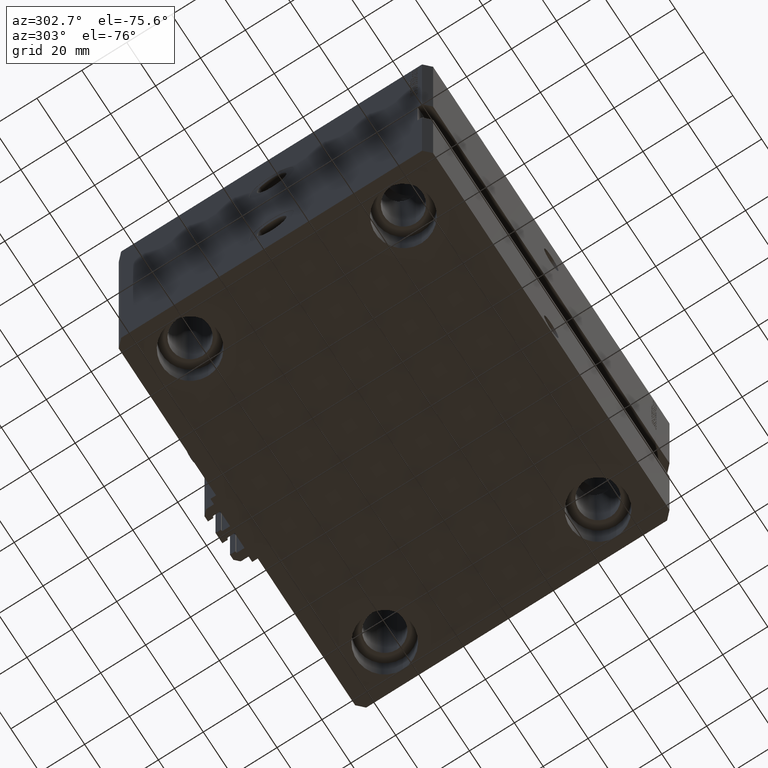
[diagram: clean part render]
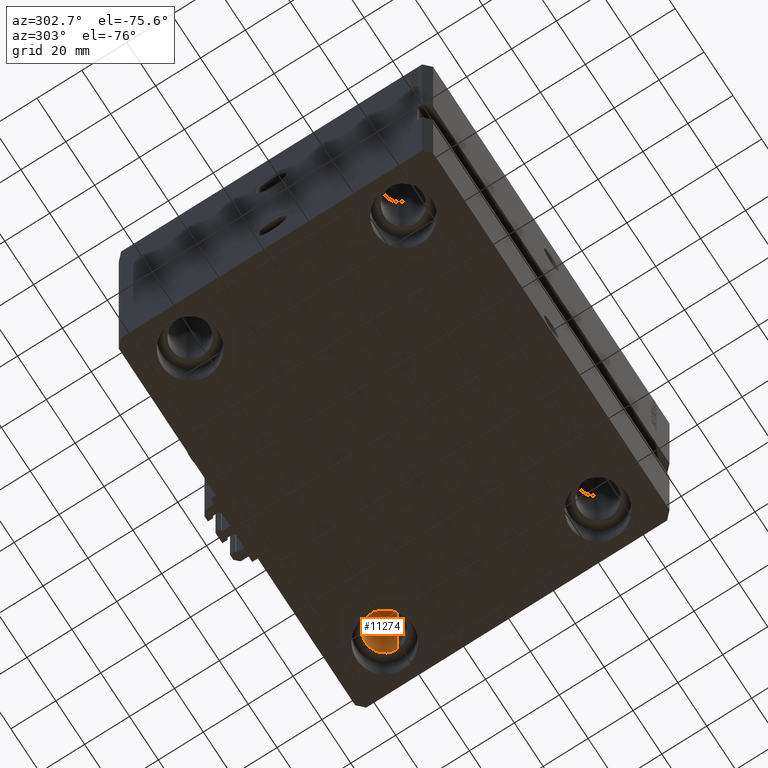
[diagram: same view with one face highlighted and labeled with its STEP entity id]
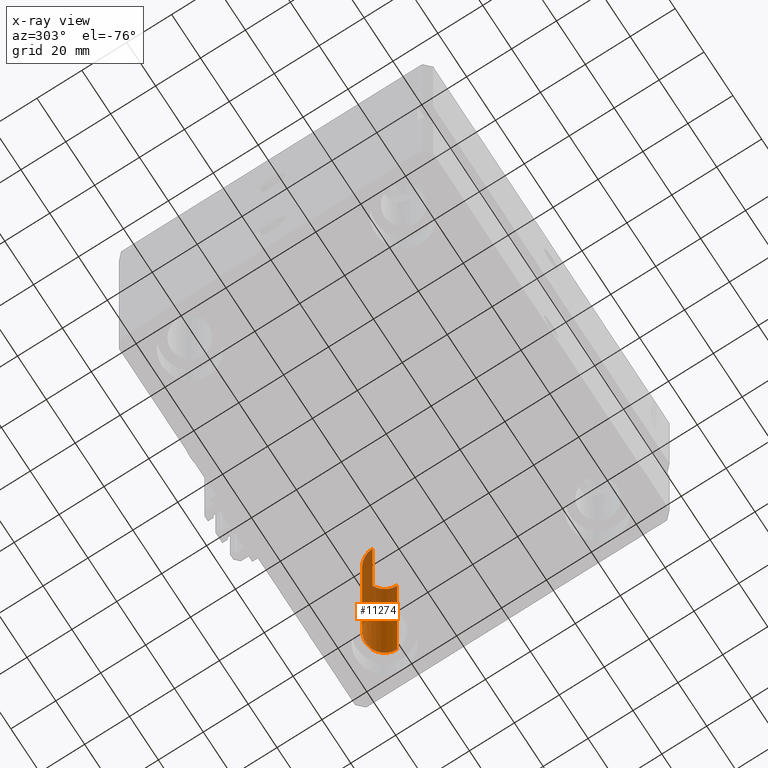
[diagram: x-ray of the same camera — body ghosted, the highlighted face saturated]
A machine part, auxiliary view. The second image highlights one B-rep face of the part: STEP entity #11274.
The next image is the same camera in x-ray: the body ghosted, the highlighted face saturated — about 46% of this face is hidden behind the body in this view.
In plain terms, the highlighted cylindrical surface (edge-blend (fillet) strip) has radius 8.5 mm, axis along (0, 0, 1).
Its self-contained STEP definition (entity closure, byte-faithful):
#1358 = EDGE_CURVE ( 'NONE', #10125, #40184, #13515, .T. ) ;
#1678 = DIRECTION ( 'NONE',  ( -1.000000000000000000, 0.000000000000000000, 0.000000000000000000 ) ) ;
#5015 = CARTESIAN_POINT ( 'NONE',  ( 67.50000000000000000, 47.50000000000001421, -130.0000000000000000 ) ) ;
#6543 = AXIS2_PLACEMENT_3D ( 'NONE', #17217, #43663, #18178 ) ;
#6633 = AXIS2_PLACEMENT_3D ( 'NONE', #15880, #46016, #1678 ) ;
#6661 = VERTEX_POINT ( 'NONE', #13962 ) ;
#7079 = VECTOR ( 'NONE', #33457, 1000.000000000000000 ) ;
#7207 = EDGE_LOOP ( 'NONE', ( #46734, #47642, #23147, #31005 ) ) ;
#7568 = FACE_OUTER_BOUND ( 'NONE', #7207, .T. ) ;
#10125 = VERTEX_POINT ( 'NONE', #43766 ) ;
#10324 = DIRECTION ( 'NONE',  ( -0.000000000000000000, -0.000000000000000000, 1.000000000000000000 ) ) ;
#11274 = ADVANCED_FACE ( 'NONE', ( #7568 ), #44795, .F. ) ;
#13515 = LINE ( 'NONE', #28936, #45874 ) ;
#13962 = CARTESIAN_POINT ( 'NONE',  ( 76.00000000000001421, 47.50000000000001421, -17.00000000000000000 ) ) ;
#14054 = EDGE_CURVE ( 'NONE', #23526, #6661, #19010, .T. ) ;
#15880 = CARTESIAN_POINT ( 'NONE',  ( 67.50000000000000000, 47.50000000000001421, -113.0000000000000000 ) ) ;
#17217 = CARTESIAN_POINT ( 'NONE',  ( 67.50000000000000000, 47.50000000000001421, -17.00000000000000000 ) ) ;
#17322 = AXIS2_PLACEMENT_3D ( 'NONE', #5015, #22256, #37201 ) ;
#18178 = DIRECTION ( 'NONE',  ( 1.000000000000000000, 0.000000000000000000, 0.000000000000000000 ) ) ;
#19010 = LINE ( 'NONE', #45209, #7079 ) ;
#20516 = EDGE_CURVE ( 'NONE', #10125, #23526, #37126, .T. ) ;
#22256 = DIRECTION ( 'NONE',  ( -0.000000000000000000, -0.000000000000000000, 1.000000000000000000 ) ) ;
#23147 = ORIENTED_EDGE ( 'NONE', *, *, #14054, .T. ) ;
#23526 = VERTEX_POINT ( 'NONE', #42326 ) ;
#24641 = CARTESIAN_POINT ( 'NONE',  ( 59.00000000000000000, 47.50000000000001421, -17.00000000000000000 ) ) ;
#27607 = EDGE_CURVE ( 'NONE', #6661, #40184, #48024, .T. ) ;
#28936 = CARTESIAN_POINT ( 'NONE',  ( 59.00000000000000000, 47.50000000000001421, -130.0000000000000000 ) ) ;
#31005 = ORIENTED_EDGE ( 'NONE', *, *, #27607, .T. ) ;
#33457 = DIRECTION ( 'NONE',  ( -0.000000000000000000, -0.000000000000000000, 1.000000000000000000 ) ) ;
#37126 = CIRCLE ( 'NONE', #6633, 8.500000000000007105 ) ;
#37201 = DIRECTION ( 'NONE',  ( 1.000000000000000000, 0.000000000000000000, 0.000000000000000000 ) ) ;
#40184 = VERTEX_POINT ( 'NONE', #24641 ) ;
#42326 = CARTESIAN_POINT ( 'NONE',  ( 76.00000000000001421, 47.50000000000001421, -113.0000000000000000 ) ) ;
#43663 = DIRECTION ( 'NONE',  ( 0.000000000000000000, 0.000000000000000000, 1.000000000000000000 ) ) ;
#43766 = CARTESIAN_POINT ( 'NONE',  ( 59.00000000000000000, 47.50000000000001421, -113.0000000000000000 ) ) ;
#44795 = CYLINDRICAL_SURFACE ( 'NONE', #17322, 8.500000000000007105 ) ;
#45209 = CARTESIAN_POINT ( 'NONE',  ( 76.00000000000001421, 47.50000000000001421, -130.0000000000000000 ) ) ;
#45874 = VECTOR ( 'NONE', #10324, 1000.000000000000000 ) ;
#46016 = DIRECTION ( 'NONE',  ( 0.000000000000000000, 0.000000000000000000, -1.000000000000000000 ) ) ;
#46734 = ORIENTED_EDGE ( 'NONE', *, *, #1358, .F. ) ;
#47642 = ORIENTED_EDGE ( 'NONE', *, *, #20516, .T. ) ;
#48024 = CIRCLE ( 'NONE', #6543, 8.500000000000007105 ) ;